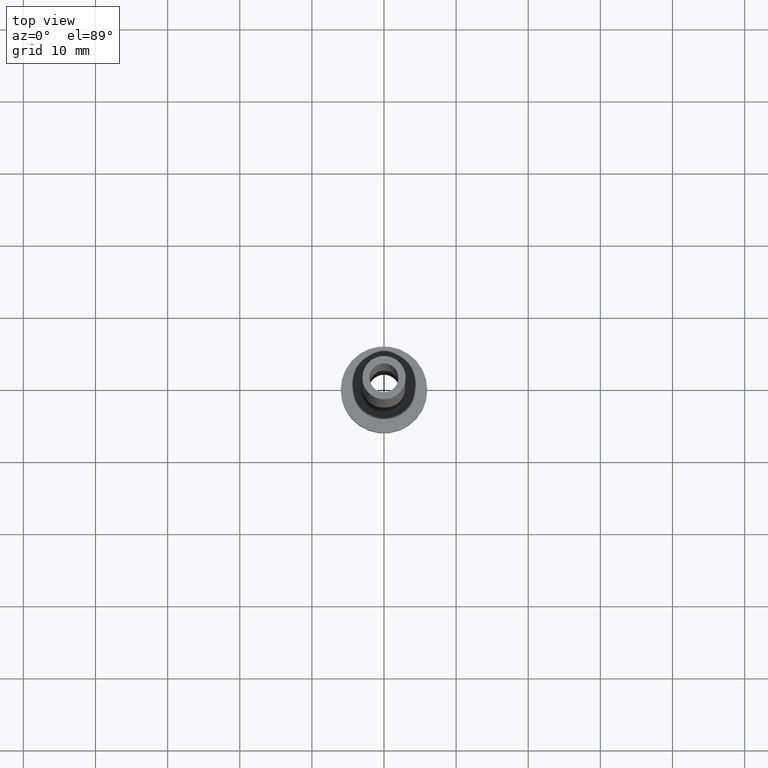
[diagram: clean part render]
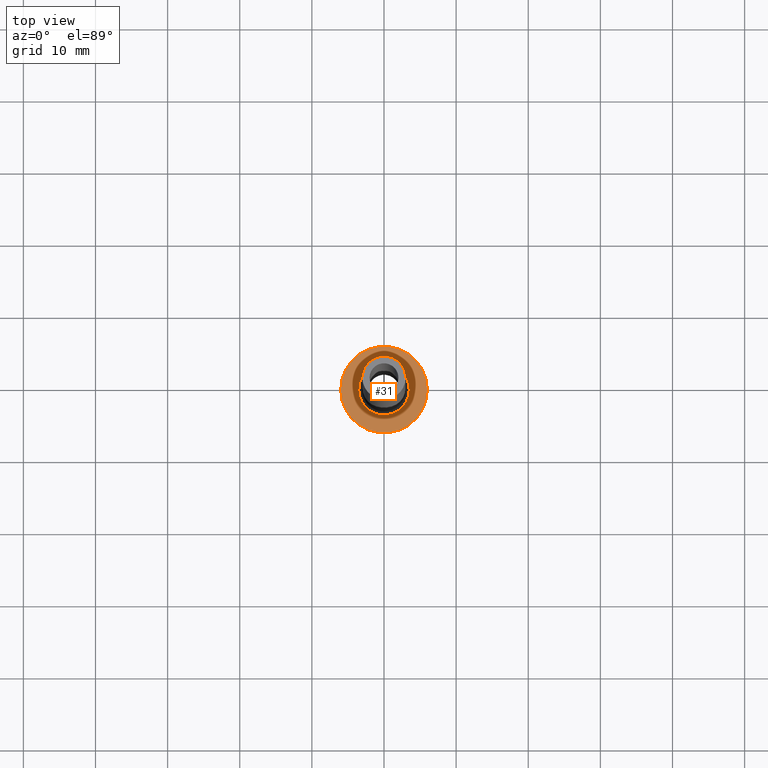
[diagram: same view with one face highlighted and labeled with its STEP entity id]
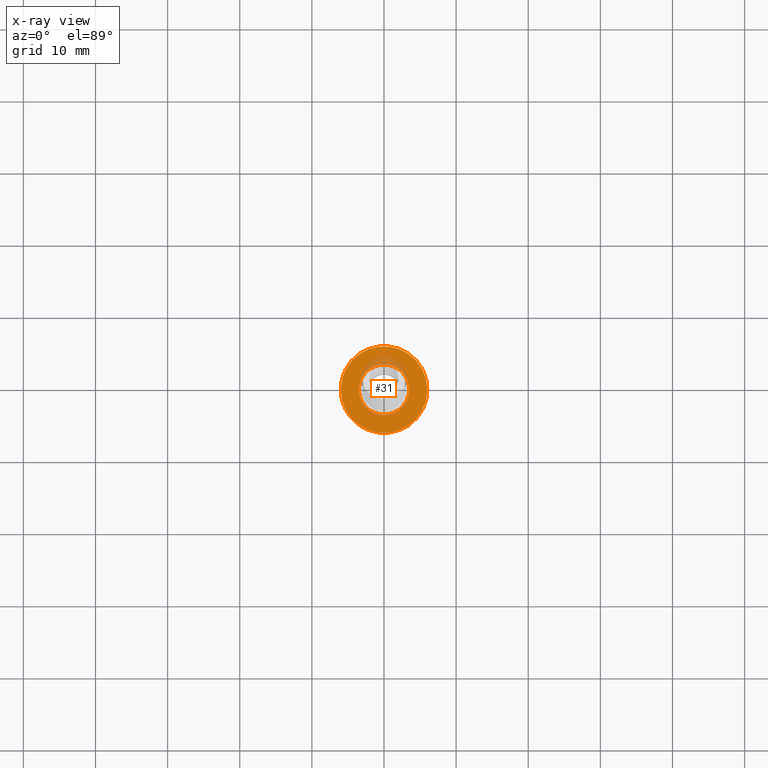
[diagram: x-ray of the same camera — body ghosted, the highlighted face saturated]
A machine part, top view. The second image highlights one B-rep face of the part: STEP entity #31.
The next image is the same camera in x-ray: the body ghosted, the highlighted face saturated — about 8% of this face is hidden behind the body in this view.
In plain terms, the highlighted planar face has unit normal (0, 0, 1).
Its self-contained STEP definition (entity closure, byte-faithful):
#10 = DIRECTION ( 'NONE',  ( 0.000000000000000000, 0.000000000000000000, 1.000000000000000000 ) ) ;
#19 = DIRECTION ( 'NONE',  ( 0.000000000000000000, 0.000000000000000000, 1.000000000000000000 ) ) ;
#31 = ADVANCED_FACE ( 'NONE', ( #231, #288 ), #397, .T. ) ;
#41 = AXIS2_PLACEMENT_3D ( 'NONE', #242, #275, #136 ) ;
#65 = CARTESIAN_POINT ( 'NONE',  ( 0.000000000000000000, 0.000000000000000000, 5.000000000000000000 ) ) ;
#78 = ORIENTED_EDGE ( 'NONE', *, *, #417, .T. ) ;
#86 = CIRCLE ( 'NONE', #188, 6.000000000000000888 ) ;
#104 = ORIENTED_EDGE ( 'NONE', *, *, #321, .T. ) ;
#122 = CIRCLE ( 'NONE', #277, 3.500000000000000444 ) ;
#129 = CARTESIAN_POINT ( 'NONE',  ( 3.500000000000000444, 0.000000000000000000, 5.000000000000002665 ) ) ;
#134 = CIRCLE ( 'NONE', #233, 3.500000000000000444 ) ;
#136 = DIRECTION ( 'NONE',  ( 1.000000000000000000, 0.000000000000000000, 0.000000000000000000 ) ) ;
#139 = DIRECTION ( 'NONE',  ( 1.000000000000000000, 0.000000000000000000, 0.000000000000000000 ) ) ;
#140 = VERTEX_POINT ( 'NONE', #129 ) ;
#142 = DIRECTION ( 'NONE',  ( 1.000000000000000000, 0.000000000000000000, 0.000000000000000000 ) ) ;
#143 = VERTEX_POINT ( 'NONE', #376 ) ;
#153 = DIRECTION ( 'NONE',  ( 1.000000000000000000, 0.000000000000000000, -0.000000000000000000 ) ) ;
#161 = DIRECTION ( 'NONE',  ( 1.000000000000000000, 0.000000000000000000, 0.000000000000000000 ) ) ;
#163 = CARTESIAN_POINT ( 'NONE',  ( -3.500000000000000444, 4.286263797015737088E-16, 5.000000000000002665 ) ) ;
#171 = CIRCLE ( 'NONE', #41, 6.000000000000000888 ) ;
#172 = DIRECTION ( 'NONE',  ( -0.000000000000000000, -0.000000000000000000, -1.000000000000000000 ) ) ;
#179 = EDGE_LOOP ( 'NONE', ( #104, #452 ) ) ;
#188 = AXIS2_PLACEMENT_3D ( 'NONE', #274, #19, #161 ) ;
#217 = ORIENTED_EDGE ( 'NONE', *, *, #353, .T. ) ;
#231 = FACE_BOUND ( 'NONE', #241, .T. ) ;
#233 = AXIS2_PLACEMENT_3D ( 'NONE', #347, #172, #139 ) ;
#241 = EDGE_LOOP ( 'NONE', ( #78, #217 ) ) ;
#242 = CARTESIAN_POINT ( 'NONE',  ( 0.000000000000000000, 0.000000000000000000, 5.000000000000000000 ) ) ;
#254 = VERTEX_POINT ( 'NONE', #163 ) ;
#256 = CARTESIAN_POINT ( 'NONE',  ( 0.000000000000000000, 0.000000000000000000, 5.000000000000000000 ) ) ;
#258 = EDGE_CURVE ( 'NONE', #354, #143, #86, .T. ) ;
#274 = CARTESIAN_POINT ( 'NONE',  ( 0.000000000000000000, 0.000000000000000000, 5.000000000000000000 ) ) ;
#275 = DIRECTION ( 'NONE',  ( 0.000000000000000000, 0.000000000000000000, 1.000000000000000000 ) ) ;
#277 = AXIS2_PLACEMENT_3D ( 'NONE', #65, #350, #142 ) ;
#288 = FACE_OUTER_BOUND ( 'NONE', #179, .T. ) ;
#321 = EDGE_CURVE ( 'NONE', #143, #354, #171, .T. ) ;
#345 = CARTESIAN_POINT ( 'NONE',  ( 6.000000000000000888, 7.347880794884120722E-16, 5.000000000000000000 ) ) ;
#347 = CARTESIAN_POINT ( 'NONE',  ( 0.000000000000000000, 0.000000000000000000, 5.000000000000000000 ) ) ;
#350 = DIRECTION ( 'NONE',  ( -0.000000000000000000, -0.000000000000000000, -1.000000000000000000 ) ) ;
#353 = EDGE_CURVE ( 'NONE', #254, #140, #122, .T. ) ;
#354 = VERTEX_POINT ( 'NONE', #345 ) ;
#376 = CARTESIAN_POINT ( 'NONE',  ( -6.000000000000000888, 0.000000000000000000, 5.000000000000000000 ) ) ;
#397 = PLANE ( 'NONE',  #403 ) ;
#403 = AXIS2_PLACEMENT_3D ( 'NONE', #256, #10, #153 ) ;
#417 = EDGE_CURVE ( 'NONE', #140, #254, #134, .T. ) ;
#452 = ORIENTED_EDGE ( 'NONE', *, *, #258, .T. ) ;